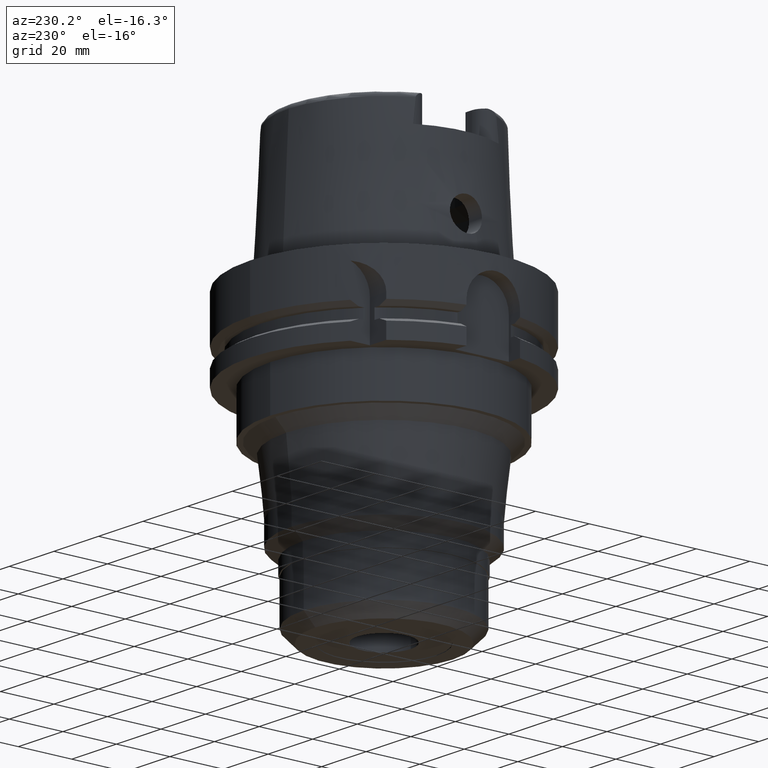
[diagram: clean part render]
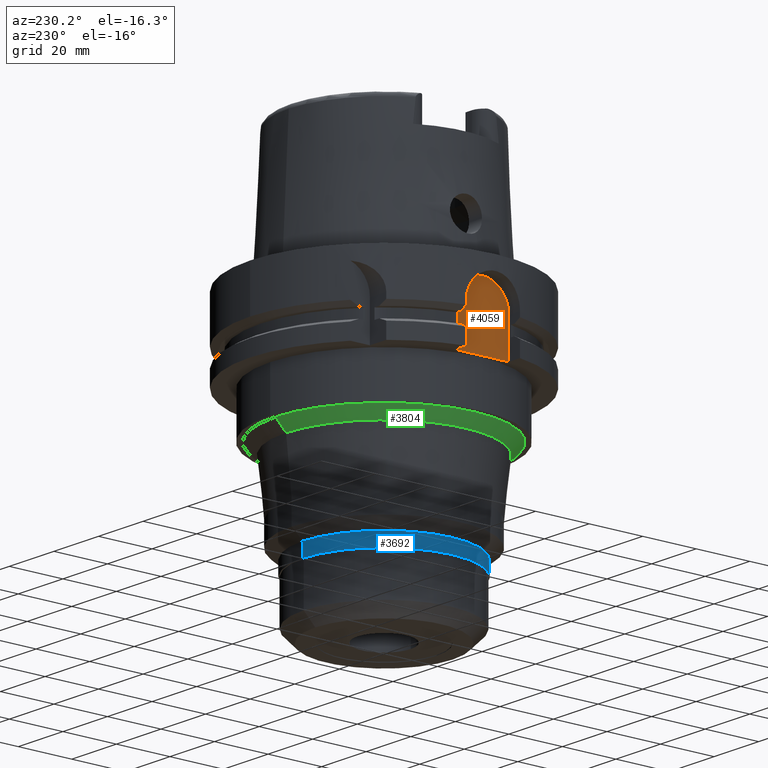
[diagram: same view with three faces highlighted in distinct colors, each labeled with its STEP entity id]
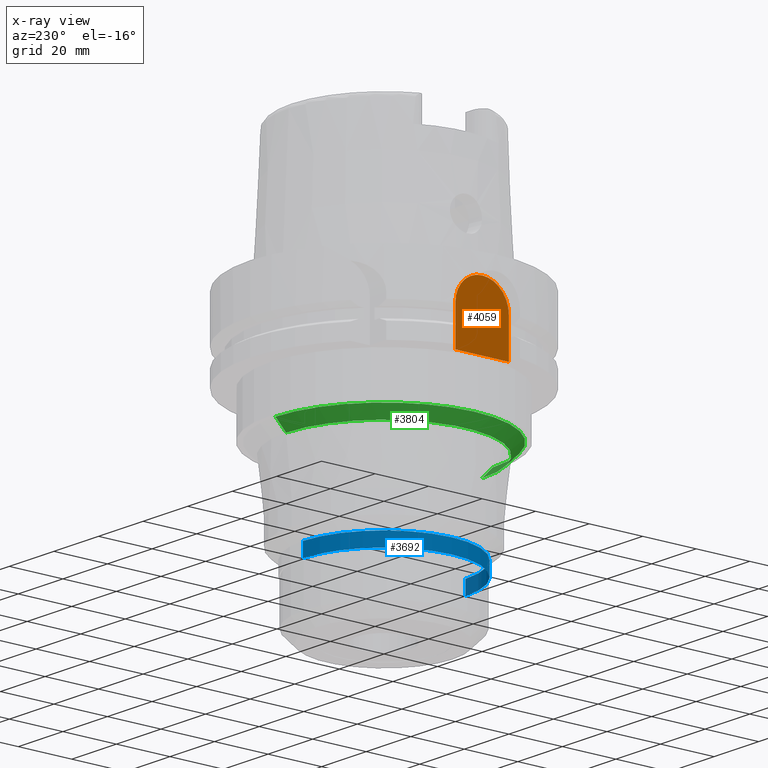
[diagram: x-ray of the same camera — body ghosted, the three highlighted faces saturated]
A machine part, auxiliary view with three faces highlighted in distinct colors.
The next image is the same camera in x-ray (body ghosted, the three faces saturated) — at least one of them is partly hidden behind the body in this view.
Their STEP definitions:

[orange] entity #4059 — the highlighted planar face has unit normal (1, 0, 0).
#1660=DIRECTION('',(0.E0,0.E0,1.E0));
#1661=VECTOR('',#1660,1.4E1);
#1662=CARTESIAN_POINT('',(-4.4E1,-1.E1,-2.9E1));
#1663=LINE('',#1662,#1661);
#1674=DIRECTION('',(0.E0,1.E0,0.E0));
#1675=VECTOR('',#1674,2.E1);
#1676=CARTESIAN_POINT('',(-4.4E1,-1.E1,-2.9E1));
#1677=LINE('',#1676,#1675);
#1681=CARTESIAN_POINT('',(-4.4E1,0.E0,-1.5E1));
#1682=DIRECTION('',(1.E0,0.E0,0.E0));
#1683=DIRECTION('',(0.E0,1.E0,0.E0));
#1684=AXIS2_PLACEMENT_3D('',#1681,#1682,#1683);
#1689=CARTESIAN_POINT('',(-4.4E1,0.E0,-1.5E1));
#1690=DIRECTION('',(1.E0,0.E0,0.E0));
#1691=DIRECTION('',(0.E0,0.E0,1.E0));
#1692=AXIS2_PLACEMENT_3D('',#1689,#1690,#1691);
#1711=DIRECTION('',(0.E0,0.E0,-1.E0));
#1712=VECTOR('',#1711,1.4E1);
#1713=CARTESIAN_POINT('',(-4.4E1,1.E1,-1.5E1));
#1714=LINE('',#1713,#1712);
#2540=CARTESIAN_POINT('',(-4.4E1,1.E1,-2.9E1));
#2541=VERTEX_POINT('',#2540);
#2542=CARTESIAN_POINT('',(-4.4E1,-1.E1,-2.9E1));
#2543=VERTEX_POINT('',#2542);
#2691=CARTESIAN_POINT('',(-4.4E1,-1.E1,-1.5E1));
#2692=VERTEX_POINT('',#2691);
#2700=CARTESIAN_POINT('',(-4.4E1,1.E1,-1.5E1));
#2701=VERTEX_POINT('',#2700);
#2702=CARTESIAN_POINT('',(-4.4E1,0.E0,-5.E0));
#2703=VERTEX_POINT('',#2702);
#4044=CARTESIAN_POINT('',(-4.4E1,0.E0,0.E0));
#4045=DIRECTION('',(1.E0,0.E0,0.E0));
#4046=DIRECTION('',(0.E0,0.E0,1.E0));
#4047=AXIS2_PLACEMENT_3D('',#4044,#4045,#4046);
#4048=PLANE('',#4047);
#4049=ORIENTED_EDGE('',*,*,#3862,.T.);
#4051=ORIENTED_EDGE('',*,*,#4050,.F.);
#4053=ORIENTED_EDGE('',*,*,#4052,.T.);
#4055=ORIENTED_EDGE('',*,*,#4054,.T.);
#4056=ORIENTED_EDGE('',*,*,#4024,.F.);
#4057=EDGE_LOOP('',(#4049,#4051,#4053,#4055,#4056));
#4058=FACE_OUTER_BOUND('',#4057,.F.);
#1685=CIRCLE('',#1684,1.E1);
#1693=CIRCLE('',#1692,1.E1);
#3862=EDGE_CURVE('',#2543,#2541,#1677,.T.);
#4024=EDGE_CURVE('',#2543,#2692,#1663,.T.);
#4050=EDGE_CURVE('',#2701,#2541,#1714,.T.);
#4052=EDGE_CURVE('',#2701,#2703,#1685,.T.);
#4054=EDGE_CURVE('',#2703,#2692,#1693,.T.);
#4059=ADVANCED_FACE('',(#4058),#4048,.F.);

[blue] entity #3692 — the highlighted cylindrical surface (partial cylindrical patch) has radius 30.35 mm, axis along (0, 0, -1).
#1254=CARTESIAN_POINT('',(0.E0,1.932002790335E-14,-8.54E1));
#1255=DIRECTION('',(0.E0,0.E0,1.E0));
#1256=DIRECTION('',(0.E0,1.E0,0.E0));
#1257=AXIS2_PLACEMENT_3D('',#1254,#1255,#1256);
#1278=DIRECTION('',(0.E0,-1.796037330662E-14,-1.E0));
#1279=VECTOR('',#1278,5.143019806540E0);
#1280=CARTESIAN_POINT('',(0.E0,3.035E1,-8.025698019346E1));
#1281=LINE('',#1280,#1279);
#1285=DIRECTION('',(0.E0,1.934194048406E-14,-1.E0));
#1286=VECTOR('',#1285,5.143019806540E0);
#1287=CARTESIAN_POINT('',(0.E0,-3.035E1,-8.025698019346E1));
#1288=LINE('',#1287,#1286);
#1307=CARTESIAN_POINT('',(0.E0,0.E0,-8.025698019346E1));
#1308=DIRECTION('',(0.E0,0.E0,-1.E0));
#1309=DIRECTION('',(0.E0,-1.E0,0.E0));
#1310=AXIS2_PLACEMENT_3D('',#1307,#1308,#1309);
#2582=CARTESIAN_POINT('',(0.E0,3.035E1,-8.025698019346E1));
#2583=VERTEX_POINT('',#2582);
#2584=CARTESIAN_POINT('',(0.E0,-3.035E1,-8.025698019346E1));
#2585=VERTEX_POINT('',#2584);
#2586=CARTESIAN_POINT('',(0.E0,3.035E1,-8.54E1));
#2587=VERTEX_POINT('',#2586);
#2588=CARTESIAN_POINT('',(0.E0,-3.035E1,-8.54E1));
#2589=VERTEX_POINT('',#2588);
#3680=CARTESIAN_POINT('',(0.E0,1.932002790335E-14,5.776E1));
#3681=DIRECTION('',(0.E0,0.E0,-1.E0));
#3682=DIRECTION('',(0.E0,-1.E0,0.E0));
#3683=AXIS2_PLACEMENT_3D('',#3680,#3681,#3682);
#3684=CYLINDRICAL_SURFACE('',#3683,3.035E1);
#3685=ORIENTED_EDGE('',*,*,#3670,.F.);
#3687=ORIENTED_EDGE('',*,*,#3686,.F.);
#3688=ORIENTED_EDGE('',*,*,#3673,.T.);
#3689=ORIENTED_EDGE('',*,*,#3656,.F.);
#3690=EDGE_LOOP('',(#3685,#3687,#3688,#3689));
#3691=FACE_OUTER_BOUND('',#3690,.F.);
#1258=CIRCLE('',#1257,3.035E1);
#1311=CIRCLE('',#1310,3.035E1);
#3656=EDGE_CURVE('',#2587,#2589,#1258,.T.);
#3670=EDGE_CURVE('',#2583,#2587,#1281,.T.);
#3673=EDGE_CURVE('',#2585,#2589,#1288,.T.);
#3686=EDGE_CURVE('',#2585,#2583,#1311,.T.);
#3692=ADVANCED_FACE('',(#3691),#3684,.T.);

[green] entity #3804 — the highlighted conical surface has half-angle 45 deg.
#1390=DIRECTION('',(0.E0,-7.071067811865E-1,-7.071067811866E-1));
#1391=VECTOR('',#1390,5.656854249492E0);
#1392=CARTESIAN_POINT('',(0.E0,4.057802773438E1,-4.5E1));
#1393=LINE('',#1392,#1391);
#1397=DIRECTION('',(0.E0,7.071067811865E-1,-7.071067811866E-1));
#1398=VECTOR('',#1397,5.656854249492E0);
#1399=CARTESIAN_POINT('',(0.E0,-4.057802773438E1,-4.5E1));
#1400=LINE('',#1399,#1398);
#1404=CARTESIAN_POINT('',(0.E0,0.E0,-4.9E1));
#1405=DIRECTION('',(0.E0,0.E0,-1.E0));
#1406=DIRECTION('',(0.E0,-1.E0,0.E0));
#1407=AXIS2_PLACEMENT_3D('',#1404,#1405,#1406);
#1428=CARTESIAN_POINT('',(0.E0,0.E0,-4.5E1));
#1429=DIRECTION('',(0.E0,0.E0,-1.E0));
#1430=DIRECTION('',(0.E0,-1.E0,0.E0));
#1431=AXIS2_PLACEMENT_3D('',#1428,#1429,#1430);
#2566=CARTESIAN_POINT('',(0.E0,-4.057802773438E1,-4.5E1));
#2567=CARTESIAN_POINT('',(0.E0,4.057802773438E1,-4.5E1));
#2568=VERTEX_POINT('',#2566);
#2569=VERTEX_POINT('',#2567);
#2570=CARTESIAN_POINT('',(0.E0,3.657802773438E1,-4.9E1));
#2571=VERTEX_POINT('',#2570);
#2572=CARTESIAN_POINT('',(0.E0,-3.657802773438E1,-4.9E1));
#2573=VERTEX_POINT('',#2572);
#3792=CARTESIAN_POINT('',(0.E0,0.E0,-4.7E1));
#3793=DIRECTION('',(0.E0,0.E0,1.E0));
#3794=DIRECTION('',(0.E0,1.E0,0.E0));
#3795=AXIS2_PLACEMENT_3D('',#3792,#3793,#3794);
#3796=CONICAL_SURFACE('',#3795,3.857802773438E1,4.5E1);
#3797=ORIENTED_EDGE('',*,*,#3782,.F.);
#3799=ORIENTED_EDGE('',*,*,#3798,.F.);
#3800=ORIENTED_EDGE('',*,*,#3785,.T.);
#3801=ORIENTED_EDGE('',*,*,#3756,.T.);
#3802=EDGE_LOOP('',(#3797,#3799,#3800,#3801));
#3803=FACE_OUTER_BOUND('',#3802,.F.);
#1408=CIRCLE('',#1407,3.657802773438E1);
#1432=CIRCLE('',#1431,4.057802773438E1);
#3756=EDGE_CURVE('',#2573,#2571,#1408,.T.);
#3782=EDGE_CURVE('',#2569,#2571,#1393,.T.);
#3785=EDGE_CURVE('',#2568,#2573,#1400,.T.);
#3798=EDGE_CURVE('',#2568,#2569,#1432,.T.);
#3804=ADVANCED_FACE('',(#3803),#3796,.T.);